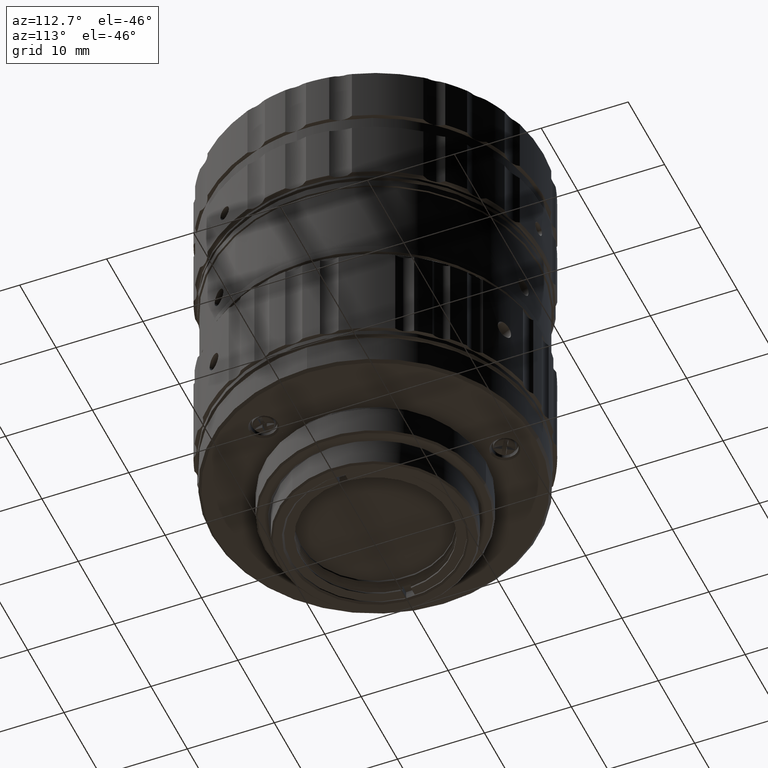
[diagram: clean part render]
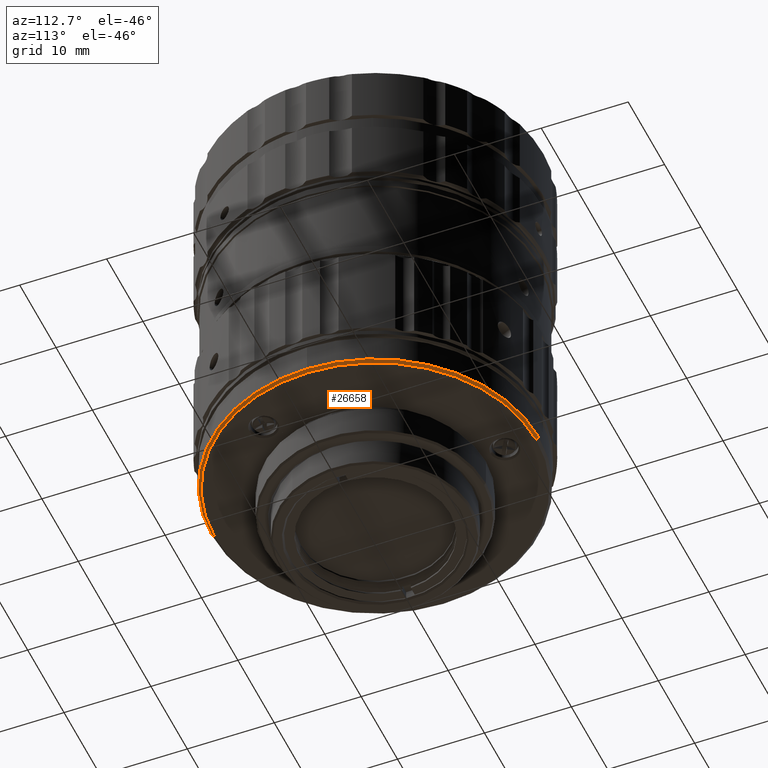
[diagram: same view with one face highlighted and labeled with its STEP entity id]
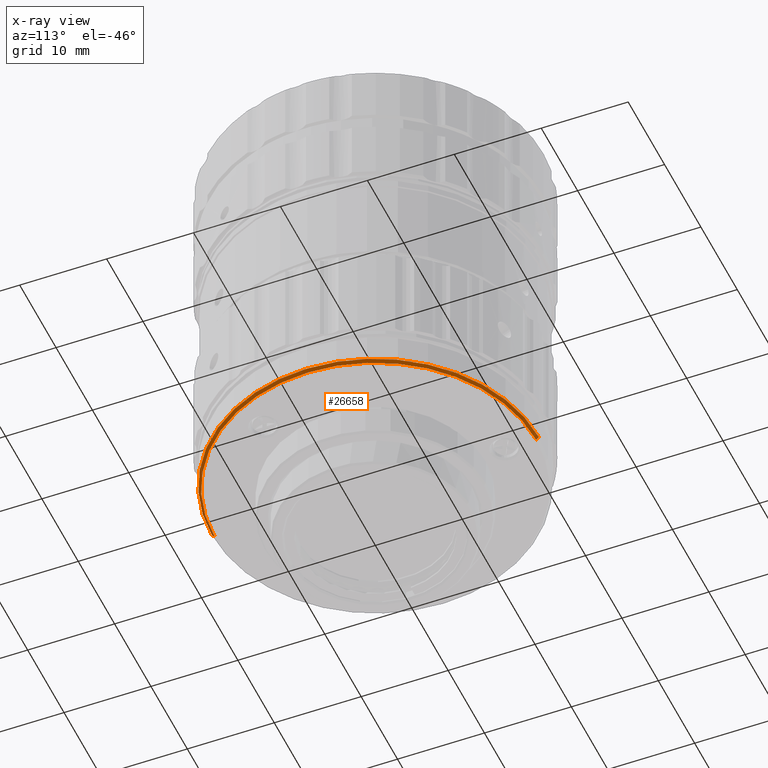
[diagram: x-ray of the same camera — body ghosted, the highlighted face saturated]
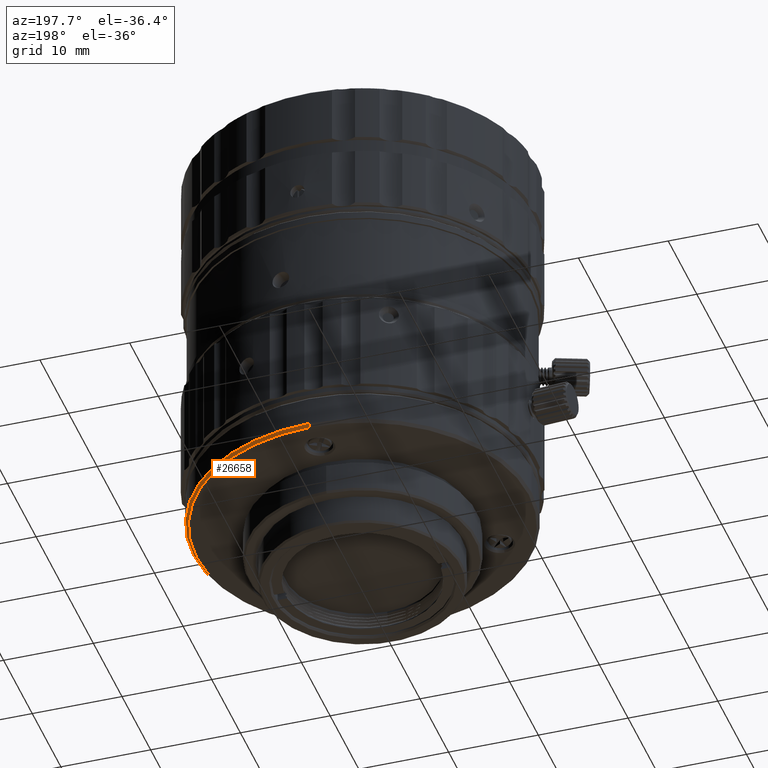
[diagram: same view with one face highlighted and labeled with its STEP entity id]
A machine part, auxiliary view. The second image highlights one B-rep face of the part: STEP entity #26658.
The next image is the same camera in x-ray: the body ghosted, the highlighted face saturated — about 0% of this face is hidden behind the body in this view.
A second angle (auxiliary view) of the same face is appended — the face is thin or edge-on in the first view.
In plain terms, the highlighted conical surface has half-angle 45 deg.
Its self-contained STEP definition (entity closure, byte-faithful):
#137 = EDGE_CURVE ( 'NONE', #46575, #7422, #5043, .T. ) ;
#1736 = VERTEX_POINT ( 'NONE', #43665 ) ;
#2537 = CARTESIAN_POINT ( 'NONE',  ( -9.823084821259360166E-13, 18.79999999973019698, -1.449999999998000000 ) ) ;
#2832 = EDGE_LOOP ( 'NONE', ( #15478, #7650, #38679, #24804, #7852 ) ) ;
#3176 = CARTESIAN_POINT ( 'NONE',  ( -9.846108181082999482E-13, -5.684653208819000283E-13, -1.599999999998000133 ) ) ;
#5043 = CIRCLE ( 'NONE', #26935, 18.80000000000000071 ) ;
#7113 = VECTOR ( 'NONE', #27920, 1000.000000000000114 ) ;
#7422 = VERTEX_POINT ( 'NONE', #2537 ) ;
#7650 = ORIENTED_EDGE ( 'NONE', *, *, #48143, .T. ) ;
#7833 = DIRECTION ( 'NONE',  ( 0.000000000000000000, 0.000000000000000000, 1.000000000000000000 ) ) ;
#7852 = ORIENTED_EDGE ( 'NONE', *, *, #31929, .F. ) ;
#9011 = CARTESIAN_POINT ( 'NONE',  ( -9.846108181082999482E-13, -18.79999999973133740, -1.449999999998000000 ) ) ;
#9292 = CARTESIAN_POINT ( 'NONE',  ( -9.846108181082999482E-13, -5.684653208819000283E-13, -1.749999999998000044 ) ) ;
#11707 = EDGE_CURVE ( 'NONE', #29268, #1736, #41941, .T. ) ;
#13287 = AXIS2_PLACEMENT_3D ( 'NONE', #39798, #7833, #34978 ) ;
#14340 = DIRECTION ( 'NONE',  ( 0.000000000000000000, -1.000000000000000000, -4.650733179562486141E-17 ) ) ;
#14356 = DIRECTION ( 'NONE',  ( 0.000000000000000000, 1.000000000000000000, 0.000000000000000000 ) ) ;
#15478 = ORIENTED_EDGE ( 'NONE', *, *, #11707, .T. ) ;
#16781 = CARTESIAN_POINT ( 'NONE',  ( -9.823268518278901414E-13, 18.64999999999943014, -1.599999999997999245 ) ) ;
#18074 = AXIS2_PLACEMENT_3D ( 'NONE', #3176, #18403, #14340 ) ;
#18403 = DIRECTION ( 'NONE',  ( 0.000000000000000000, -4.661861793046199731E-17, 1.000000000000000000 ) ) ;
#18578 = CARTESIAN_POINT ( 'NONE',  ( -9.846108181082999482E-13, -18.50000000000056843, -1.749999999998000044 ) ) ;
#20597 = LINE ( 'NONE', #16781, #21236 ) ;
#21236 = VECTOR ( 'NONE', #39378, 1000.000000000000114 ) ;
#23453 = CARTESIAN_POINT ( 'NONE',  ( 18.79999999999901661, -5.684653208819000283E-13, -1.449999999998000000 ) ) ;
#24804 = ORIENTED_EDGE ( 'NONE', *, *, #28802, .F. ) ;
#26658 = ADVANCED_FACE ( 'NONE', ( #40985 ), #31006, .T. ) ;
#26935 = AXIS2_PLACEMENT_3D ( 'NONE', #48835, #33624, #14356 ) ;
#27920 = DIRECTION ( 'NONE',  ( 0.000000000000000000, -0.7071067805519559712, 0.7071067818211389522 ) ) ;
#28802 = EDGE_CURVE ( 'NONE', #40284, #46575, #49727, .T. ) ;
#29268 = VERTEX_POINT ( 'NONE', #18578 ) ;
#31006 = CONICAL_SURFACE ( 'NONE', #18074, 18.64999999999999858, 0.7853981625000003852 ) ;
#31929 = EDGE_CURVE ( 'NONE', #29268, #40284, #49106, .T. ) ;
#33624 = DIRECTION ( 'NONE',  ( 0.000000000000000000, 0.000000000000000000, 1.000000000000000000 ) ) ;
#34978 = DIRECTION ( 'NONE',  ( 0.000000000000000000, 1.000000000000000000, 0.000000000000000000 ) ) ;
#38679 = ORIENTED_EDGE ( 'NONE', *, *, #137, .F. ) ;
#39378 = DIRECTION ( 'NONE',  ( 8.659560554583427742E-17, 0.7071067805519559712, 0.7071067818211389522 ) ) ;
#39798 = CARTESIAN_POINT ( 'NONE',  ( -9.846108181082999482E-13, -5.684653208819000283E-13, -1.449999999998000000 ) ) ;
#40284 = VERTEX_POINT ( 'NONE', #9011 ) ;
#40985 = FACE_OUTER_BOUND ( 'NONE', #2832, .T. ) ;
#41021 = CARTESIAN_POINT ( 'NONE',  ( -9.846108181082999482E-13, -18.65000000000057057, -1.599999999998001021 ) ) ;
#41941 = CIRCLE ( 'NONE', #43570, 18.50000000000000000 ) ;
#43570 = AXIS2_PLACEMENT_3D ( 'NONE', #9292, #48086, #44780 ) ;
#43665 = CARTESIAN_POINT ( 'NONE',  ( -9.823268518279067012E-13, 18.49999999999943157, -1.749999999998000044 ) ) ;
#44780 = DIRECTION ( 'NONE',  ( 0.000000000000000000, -1.000000000000000000, 0.000000000000000000 ) ) ;
#46575 = VERTEX_POINT ( 'NONE', #23453 ) ;
#48086 = DIRECTION ( 'NONE',  ( 0.000000000000000000, 0.000000000000000000, 1.000000000000000000 ) ) ;
#48143 = EDGE_CURVE ( 'NONE', #1736, #7422, #20597, .T. ) ;
#48835 = CARTESIAN_POINT ( 'NONE',  ( -9.846108181082999482E-13, -5.684653208819000283E-13, -1.449999999998000000 ) ) ;
#49106 = LINE ( 'NONE', #41021, #7113 ) ;
#49727 = CIRCLE ( 'NONE', #13287, 18.80000000000000071 ) ;